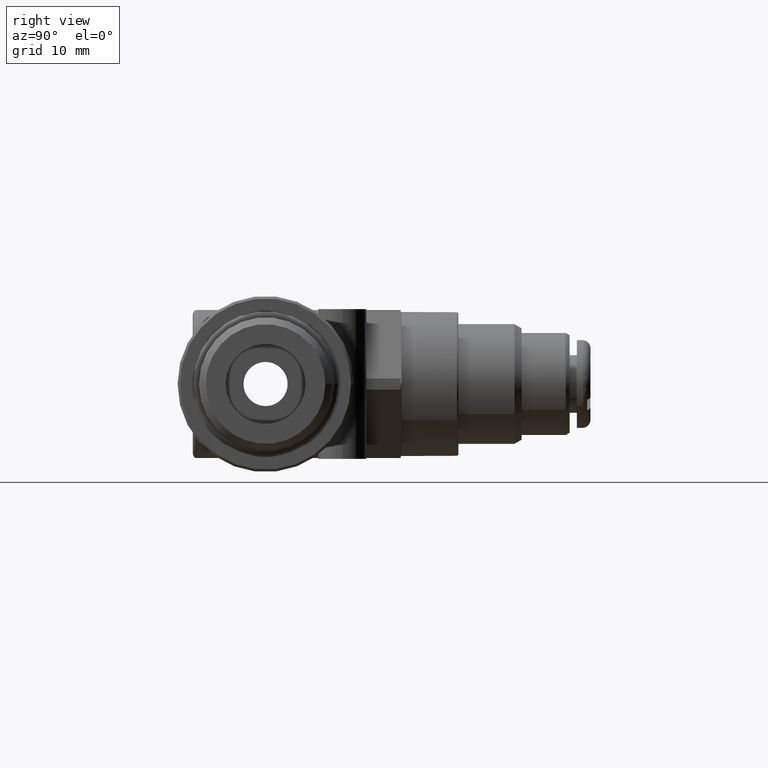
[diagram: clean part render]
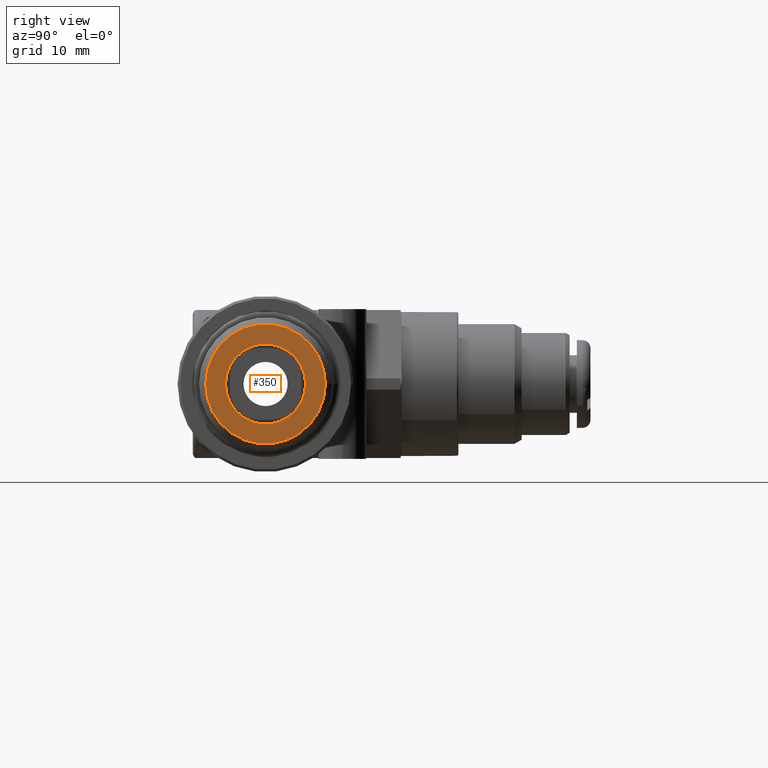
[diagram: same view with one face highlighted and labeled with its STEP entity id]
A machine part, right view. The second image highlights one B-rep face of the part: STEP entity #350.
In plain terms, the highlighted planar face has unit normal (1, 0, -0).
Its self-contained STEP definition (entity closure, byte-faithful):
#350 = ADVANCED_FACE( '', ( #809, #810 ), #811, .T. );
#809 = FACE_BOUND( '', #1494, .T. );
#810 = FACE_OUTER_BOUND( '', #1495, .T. );
#811 = PLANE( '', #1496 );
#1494 = EDGE_LOOP( '', ( #2241 ) );
#1495 = EDGE_LOOP( '', ( #2242 ) );
#1496 = AXIS2_PLACEMENT_3D( '', #2243, #2244, #2245 );
#2241 = ORIENTED_EDGE( '', *, *, #3726, .T. );
#2242 = ORIENTED_EDGE( '', *, *, #3727, .F. );
#2243 = CARTESIAN_POINT( '', ( -9.00000000000000, 7.47500000000000, 0.000000000000000 ) );
#2244 = DIRECTION( '', ( -1.00000000000000, 0.000000000000000, 0.000000000000000 ) );
#2245 = DIRECTION( '', ( 0.000000000000000, 0.000000000000000, 1.00000000000000 ) );
#3726 = EDGE_CURVE( '', #4367, #4367, #4368, .T. );
#3727 = EDGE_CURVE( '', #4369, #4369, #4370, .T. );
#4367 = VERTEX_POINT( '', #5406 );
#4368 = CIRCLE( '', #5407, 5.00000000000000 );
#4369 = VERTEX_POINT( '', #5408 );
#4370 = CIRCLE( '', #5409, 7.47500000000000 );
#5406 = CARTESIAN_POINT( '', ( -9.00000000000000, 0.000000000000000, -5.00000000000000 ) );
#5407 = AXIS2_PLACEMENT_3D( '', #6933, #6934, #6935 );
#5408 = CARTESIAN_POINT( '', ( -9.00000000000000, 0.000000000000000, -7.47500000000000 ) );
#5409 = AXIS2_PLACEMENT_3D( '', #6936, #6937, #6938 );
#6933 = CARTESIAN_POINT( '', ( -9.00000000000000, 0.000000000000000, 0.000000000000000 ) );
#6934 = DIRECTION( '', ( 1.00000000000000, 0.000000000000000, -0.000000000000000 ) );
#6935 = DIRECTION( '', ( -0.000000000000000, 0.000000000000000, -1.00000000000000 ) );
#6936 = CARTESIAN_POINT( '', ( -9.00000000000000, 0.000000000000000, 0.000000000000000 ) );
#6937 = DIRECTION( '', ( 1.00000000000000, 0.000000000000000, -0.000000000000000 ) );
#6938 = DIRECTION( '', ( -0.000000000000000, 0.000000000000000, -1.00000000000000 ) );